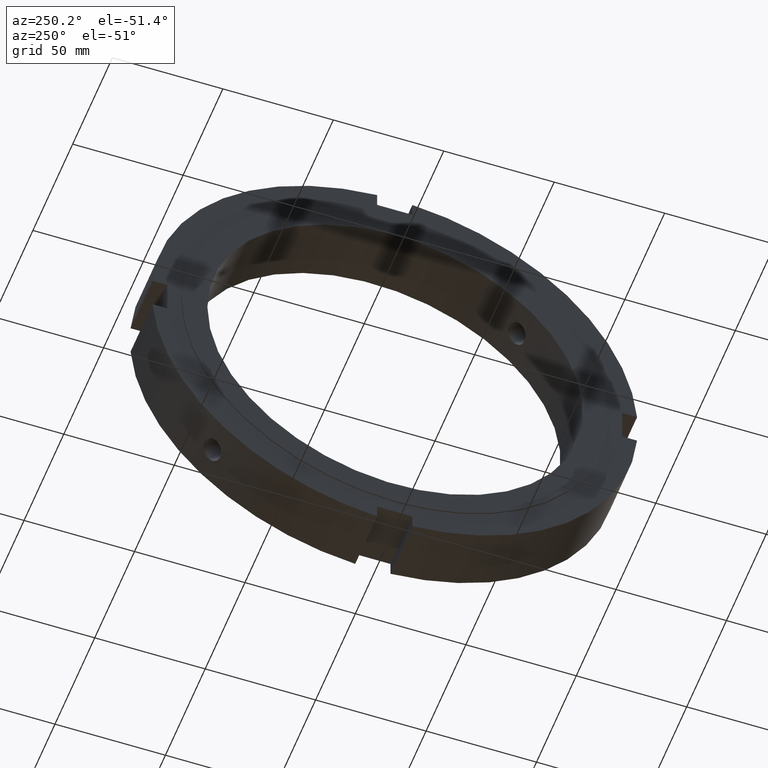
[diagram: clean part render]
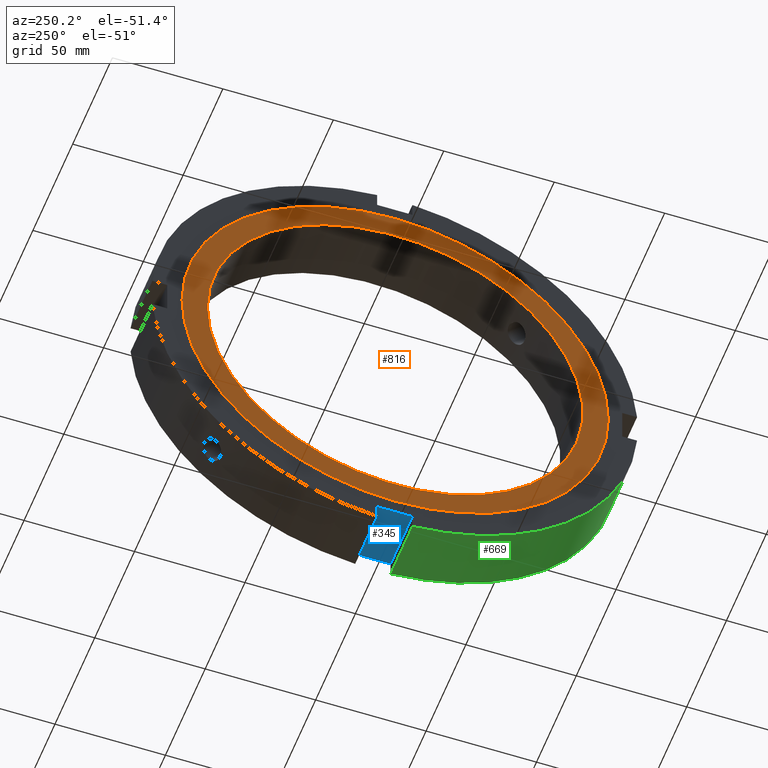
[diagram: same view with three faces highlighted in distinct colors, each labeled with its STEP entity id]
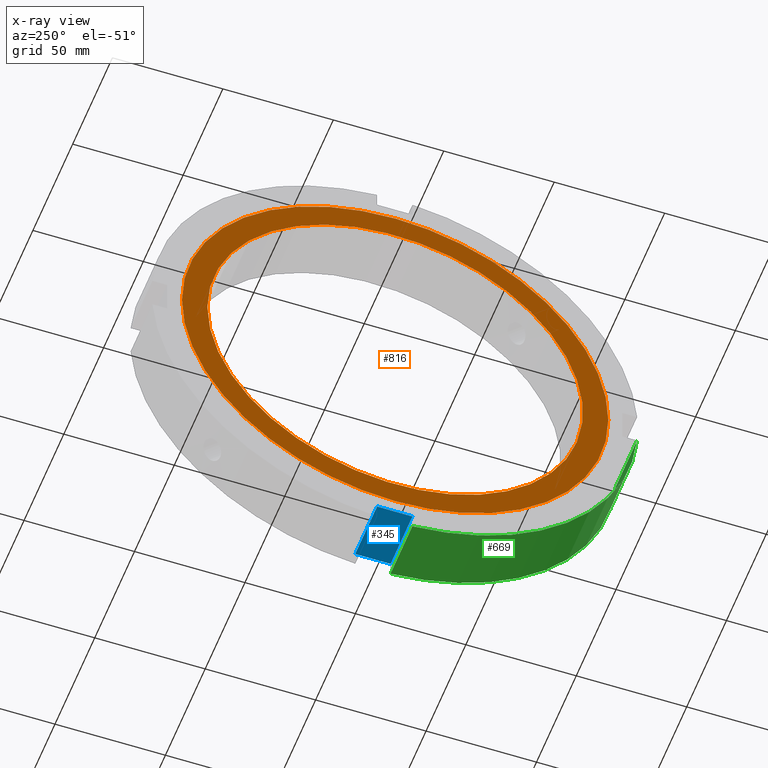
[diagram: x-ray of the same camera — body ghosted, the three highlighted faces saturated]
A machine part, auxiliary view with three faces highlighted in distinct colors.
The next image is the same camera in x-ray (body ghosted, the three faces saturated) — at least one of them is partly hidden behind the body in this view.
Their STEP definitions:

[orange] entity #816 — the highlighted planar face has unit normal (-1, 0, 0).
#789=CARTESIAN_POINT('',(-2.588731E-014,90.750000000000000,0.0));
#790=DIRECTION('',(-1.0,0.0,0.0));
#791=DIRECTION('',(0.0,0.0,1.0));
#792=AXIS2_PLACEMENT_3D('',#789,#790,#791);
#793=PLANE('',#792);
#794=CARTESIAN_POINT('',(-2.664535E-014,96.500000000000000,0.0));
#795=VERTEX_POINT('',#794);
#796=CARTESIAN_POINT('',(-2.664535E-014,0.0,0.0));
#797=DIRECTION('',(1.0,0.0,0.0));
#798=DIRECTION('',(0.0,1.0,0.0));
#799=AXIS2_PLACEMENT_3D('',#796,#797,#798);
#800=CIRCLE('',#799,96.500000000000000);
#801=EDGE_CURVE('',#795,#795,#800,.T.);
#802=ORIENTED_EDGE('',*,*,#801,.F.);
#803=EDGE_LOOP('',(#802));
#804=FACE_OUTER_BOUND('',#803,.T.);
#805=CARTESIAN_POINT('',(-2.512926E-014,85.0,0.0));
#806=VERTEX_POINT('',#805);
#807=CARTESIAN_POINT('',(-2.512747E-014,0.0,0.0));
#808=DIRECTION('',(1.0,0.0,0.0));
#809=DIRECTION('',(0.0,1.0,0.0));
#810=AXIS2_PLACEMENT_3D('',#807,#808,#809);
#811=CIRCLE('',#810,85.0);
#812=EDGE_CURVE('',#806,#806,#811,.T.);
#813=ORIENTED_EDGE('',*,*,#812,.T.);
#814=EDGE_LOOP('',(#813));
#815=FACE_BOUND('',#814,.T.);
#816=ADVANCED_FACE('',(#804,#815),#793,.T.);

[blue] entity #345 — the highlighted planar face has unit normal (0, 0, 1).
#249=CARTESIAN_POINT('',(0.499999999999972,-8.000000000000014,-103.0));
#250=VERTEX_POINT('',#249);
#259=CARTESIAN_POINT('',(27.999999999999979,-8.000000000000014,-103.0));
#260=VERTEX_POINT('',#259);
#261=CARTESIAN_POINT('',(27.999999999999979,-8.000000000000014,-103.0));
#262=DIRECTION('',(-1.0,0.0,0.0));
#263=VECTOR('',#262,27.500000000000007);
#264=LINE('',#261,#263);
#265=EDGE_CURVE('',#260,#250,#264,.T.);
#291=CARTESIAN_POINT('',(0.499999999999972,7.999999999999976,-103.0));
#292=VERTEX_POINT('',#291);
#307=CARTESIAN_POINT('',(27.999999999999979,7.999999999999976,-103.0));
#308=VERTEX_POINT('',#307);
#315=CARTESIAN_POINT('',(27.999999999999979,7.999999999999976,-103.0));
#316=DIRECTION('',(-1.0,0.0,0.0));
#317=VECTOR('',#316,27.500000000000007);
#318=LINE('',#315,#317);
#319=EDGE_CURVE('',#308,#292,#318,.T.);
#324=CARTESIAN_POINT('',(27.999999999999979,7.999999999999976,-103.0));
#325=DIRECTION('',(0.0,0.0,1.0));
#326=DIRECTION('',(0.0,-1.0,0.0));
#327=AXIS2_PLACEMENT_3D('',#324,#325,#326);
#328=PLANE('',#327);
#329=CARTESIAN_POINT('',(0.499999999999969,7.999999999999979,-102.999999999999990));
#330=DIRECTION('',(0.0,-1.0,0.0));
#331=VECTOR('',#330,15.999999999999993);
#332=LINE('',#329,#331);
#333=EDGE_CURVE('',#292,#250,#332,.T.);
#334=ORIENTED_EDGE('',*,*,#333,.F.);
#335=ORIENTED_EDGE('',*,*,#319,.F.);
#336=CARTESIAN_POINT('',(27.999999999999979,-8.000000000000014,-102.999999999999990));
#337=DIRECTION('',(0.0,1.0,0.0));
#338=VECTOR('',#337,15.999999999999993);
#339=LINE('',#336,#338);
#340=EDGE_CURVE('',#260,#308,#339,.T.);
#341=ORIENTED_EDGE('',*,*,#340,.F.);
#342=ORIENTED_EDGE('',*,*,#265,.T.);
#343=EDGE_LOOP('',(#334,#335,#341,#342));
#344=FACE_OUTER_BOUND('',#343,.T.);
#345=ADVANCED_FACE('',(#344),#328,.F.);

[green] entity #669 — the highlighted cylindrical surface (partial cylindrical patch) has radius 110 mm, axis along (1, 0, 0).
#251=CARTESIAN_POINT('',(0.499999999999967,-8.000000000000012,-109.708705215219820));
#252=VERTEX_POINT('',#251);
#267=CARTESIAN_POINT('',(27.999999999999979,-8.000000000000014,-109.708705215219820));
#268=VERTEX_POINT('',#267);
#275=CARTESIAN_POINT('',(0.499999999999968,-8.000000000000014,-109.708705215219820));
#276=DIRECTION('',(1.0,0.0,0.0));
#277=VECTOR('',#276,27.500000000000011);
#278=LINE('',#275,#277);
#279=EDGE_CURVE('',#252,#268,#278,.T.);
#391=CARTESIAN_POINT('',(0.499999999999967,-109.708705215219820,-7.999999999999981));
#392=VERTEX_POINT('',#391);
#401=CARTESIAN_POINT('',(27.999999999999979,-109.708705215219820,-7.999999999999980));
#402=VERTEX_POINT('',#401);
#403=CARTESIAN_POINT('',(27.999999999999979,-109.708705215219820,-7.999999999999981));
#404=DIRECTION('',(-1.0,0.0,0.0));
#405=VECTOR('',#404,27.500000000000011);
#406=LINE('',#403,#405);
#407=EDGE_CURVE('',#402,#392,#406,.T.);
#646=CARTESIAN_POINT('',(14.249999999999973,0.0,0.0));
#647=DIRECTION('',(1.0,0.0,0.0));
#648=DIRECTION('',(0.0,1.0,0.0));
#649=AXIS2_PLACEMENT_3D('',#646,#647,#648);
#650=CYLINDRICAL_SURFACE('',#649,110.0);
#651=ORIENTED_EDGE('',*,*,#279,.T.);
#652=CARTESIAN_POINT('',(27.999999999999979,0.0,0.0));
#653=DIRECTION('',(1.0,0.0,0.0));
#654=DIRECTION('',(0.0,1.0,0.0));
#655=AXIS2_PLACEMENT_3D('',#652,#653,#654);
#656=CIRCLE('',#655,110.0);
#657=EDGE_CURVE('',#402,#268,#656,.T.);
#658=ORIENTED_EDGE('',*,*,#657,.F.);
#659=ORIENTED_EDGE('',*,*,#407,.T.);
#660=CARTESIAN_POINT('',(0.499999999999967,0.0,0.0));
#661=DIRECTION('',(1.0,0.0,0.0));
#662=DIRECTION('',(0.0,1.0,0.0));
#663=AXIS2_PLACEMENT_3D('',#660,#661,#662);
#664=CIRCLE('',#663,110.0);
#665=EDGE_CURVE('',#392,#252,#664,.T.);
#666=ORIENTED_EDGE('',*,*,#665,.T.);
#667=EDGE_LOOP('',(#651,#658,#659,#666));
#668=FACE_OUTER_BOUND('',#667,.T.);
#669=ADVANCED_FACE('',(#668),#650,.T.);